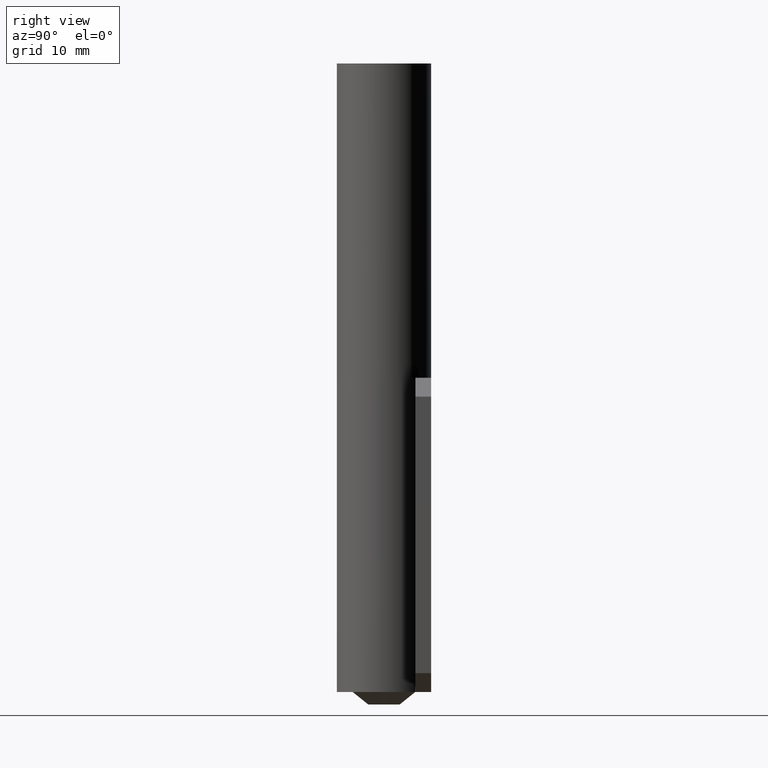
[diagram: clean part render]
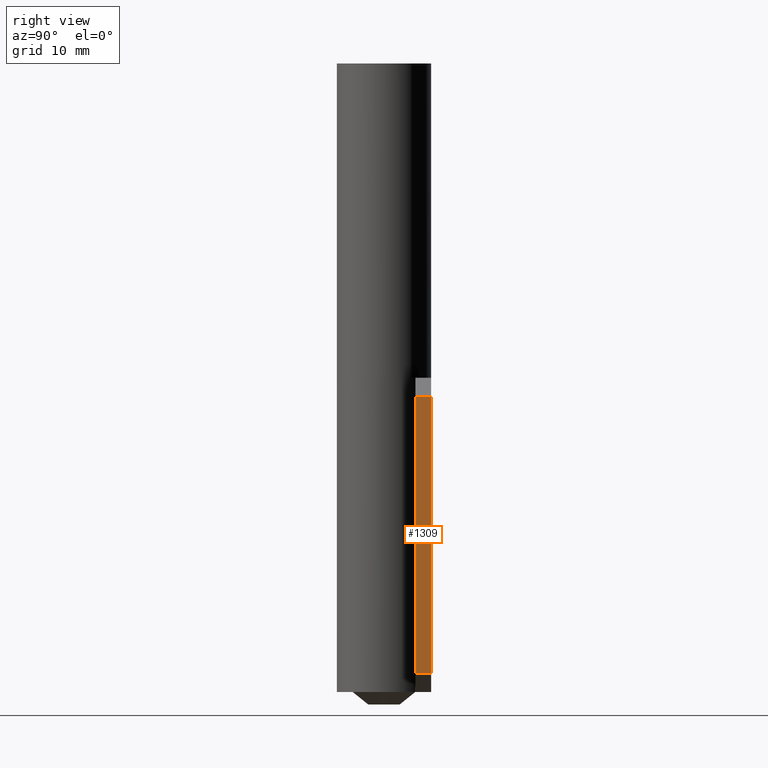
[diagram: same view with one face highlighted and labeled with its STEP entity id]
A machine part, right view. The second image highlights one B-rep face of the part: STEP entity #1309.
In plain terms, the highlighted face is a freeform B-spline surface patch.
Its self-contained STEP definition (entity closure, byte-faithful):
#981=CARTESIAN_POINT('',(27.0,7.500000000000000,47.0));
#982=VERTEX_POINT('',#981);
#995=CARTESIAN_POINT('',(27.0,5.0,47.0));
#996=VERTEX_POINT('',#995);
#1002=CARTESIAN_POINT('',(27.0,7.500000000000000,47.0));
#1003=CARTESIAN_POINT('',(27.0,5.0,47.0));
#1004=QUASI_UNIFORM_CURVE('',1,(#1002,#1003),.UNSPECIFIED.,.F.,.U.);
#1005=EDGE_CURVE('',#982,#996,#1004,.T.);
#1015=CARTESIAN_POINT('',(27.0,7.500000000000000,3.0));
#1016=VERTEX_POINT('',#1015);
#1024=CARTESIAN_POINT('',(27.0,5.0,3.0));
#1025=VERTEX_POINT('',#1024);
#1026=CARTESIAN_POINT('',(27.0,5.0,3.0));
#1027=CARTESIAN_POINT('',(27.0,7.500000000000000,3.0));
#1028=QUASI_UNIFORM_CURVE('',1,(#1026,#1027),.UNSPECIFIED.,.F.,.U.);
#1029=EDGE_CURVE('',#1025,#1016,#1028,.T.);
#1283=CARTESIAN_POINT('',(27.0,5.0,47.0));
#1284=CARTESIAN_POINT('',(27.0,5.0,3.0));
#1285=QUASI_UNIFORM_CURVE('',1,(#1283,#1284),.UNSPECIFIED.,.F.,.U.);
#1286=EDGE_CURVE('',#996,#1025,#1285,.T.);
#1294=CARTESIAN_POINT('',(27.0,4.875125004845485,49.197799914719468));
#1295=CARTESIAN_POINT('',(27.0,4.875125004845485,0.802198905108573));
#1296=CARTESIAN_POINT('',(27.0,7.624875062209740,49.197799914719468));
#1297=CARTESIAN_POINT('',(27.0,7.624875062209740,0.802198905108573));
#1298=B_SPLINE_SURFACE_WITH_KNOTS('',1,1,((#1294,#1296),(#1295,#1297)),.UNSPECIFIED.,.F.,.F.,.U.,(2,2),(2,2),(0.0,48.395601009610893),(0.0,2.749750057364255),.UNSPECIFIED.);
#1299=ORIENTED_EDGE('',*,*,#1286,.T.);
#1300=ORIENTED_EDGE('',*,*,#1029,.T.);
#1301=CARTESIAN_POINT('',(27.0,7.500000000000000,47.0));
#1302=CARTESIAN_POINT('',(27.0,7.500000000000000,3.0));
#1303=QUASI_UNIFORM_CURVE('',1,(#1301,#1302),.UNSPECIFIED.,.F.,.U.);
#1304=EDGE_CURVE('',#982,#1016,#1303,.T.);
#1305=ORIENTED_EDGE('',*,*,#1304,.F.);
#1306=ORIENTED_EDGE('',*,*,#1005,.T.);
#1307=EDGE_LOOP('',(#1299,#1300,#1305,#1306));
#1308=FACE_OUTER_BOUND('',#1307,.T.);
#1309=ADVANCED_FACE('',(#1308),#1298,.T.);